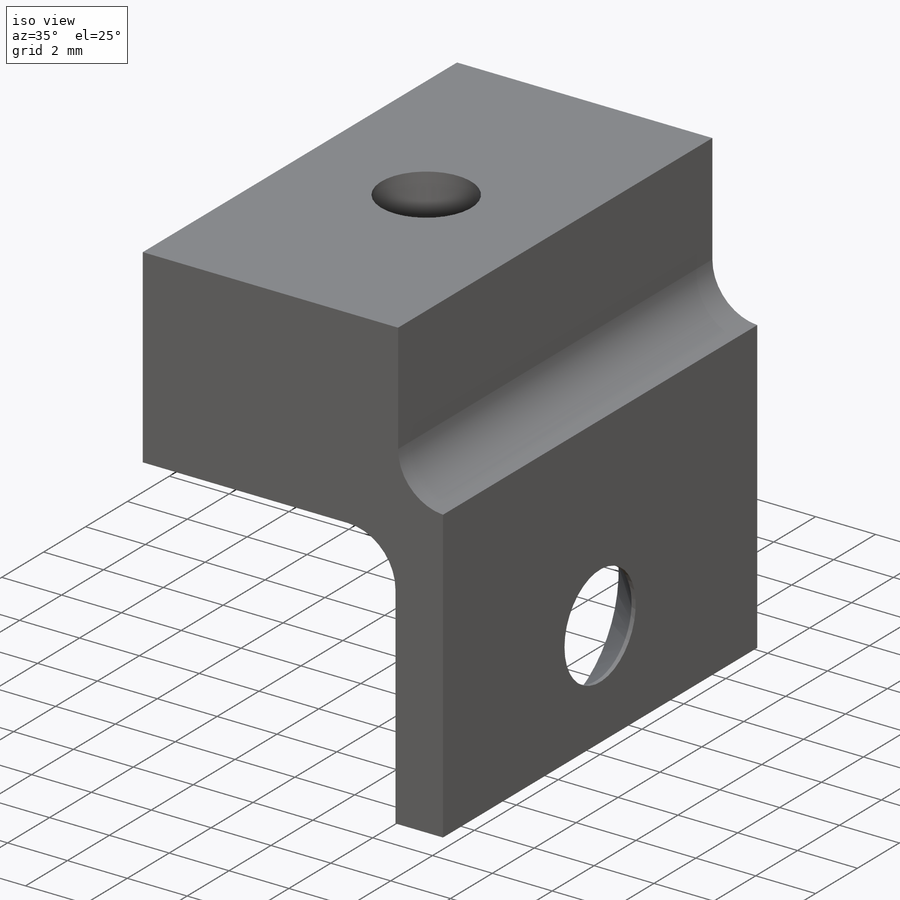
[diagram: iso view]
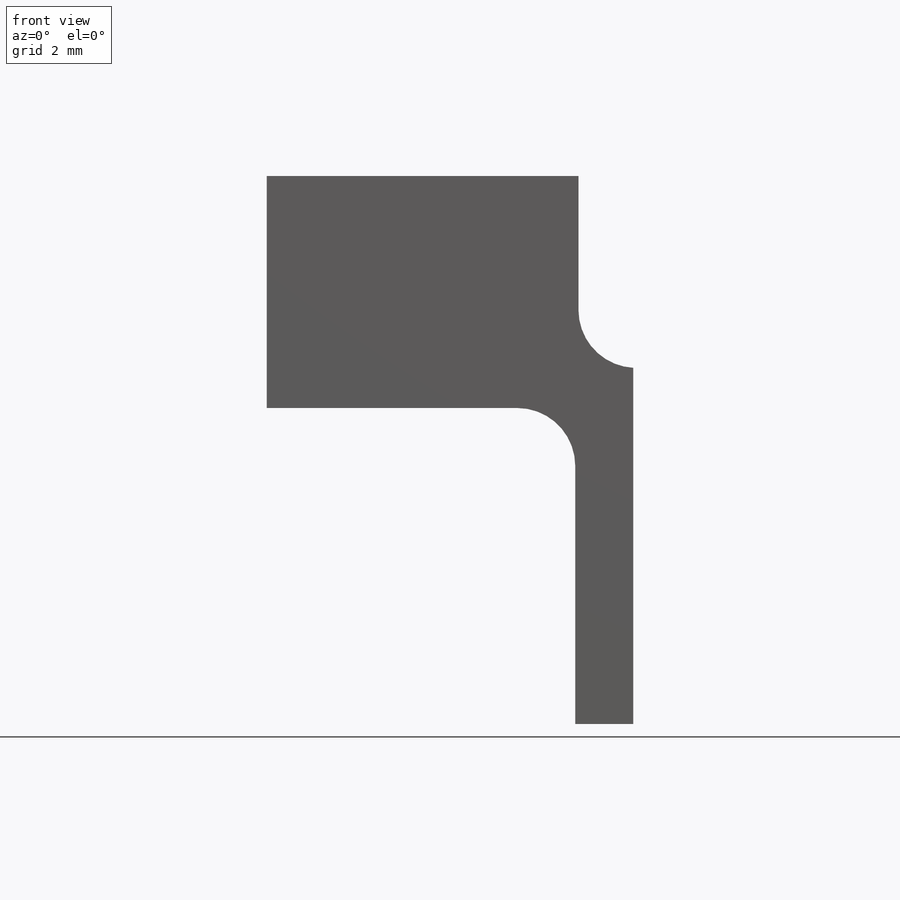
[diagram: front view]
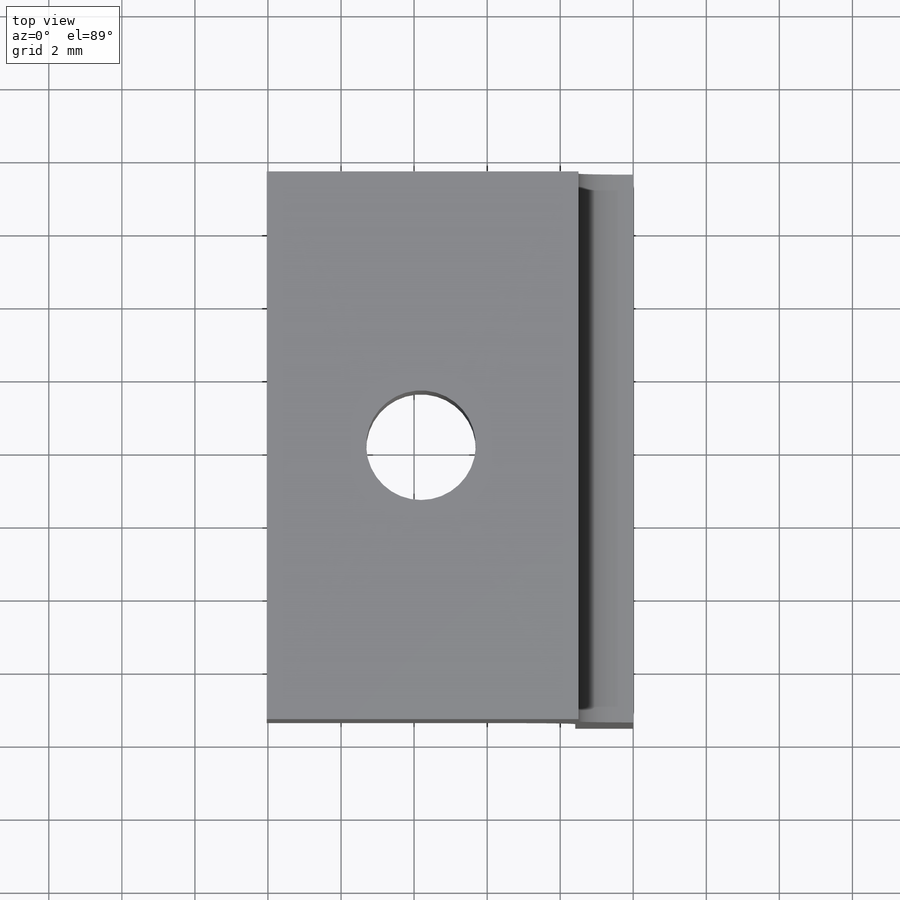
[diagram: top view]
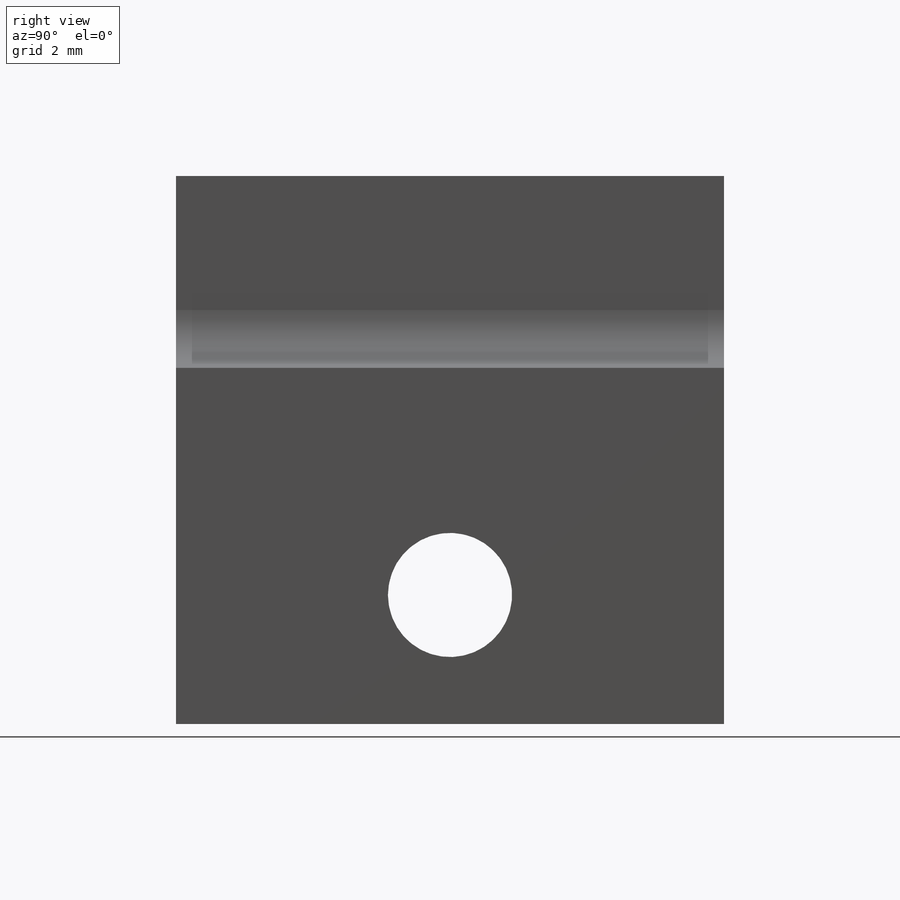
[diagram: right view]
SOLIDWORKS PART (.sldprt)
format: sldprt  version: not decoded by parser v0  size: 250,368 bytes
history: native  units: mm
features: sketch x5, plane x3, cut_extrude x2, material x1, extrude x1, fillet x1, hole x1 + 2 further entries (+13 scaffold rows collapsed)
feature tree (29):
  scaffold x13  (default folders/planes/origin — collapsed)
  material  "Material <not specified>"
  plane  "Plane1"
  plane  "Plane2"
  plane  "Plane3"
  "Axis2"
  "Axis3"
  sketch  "Sketch1"  dims[c1.D5=1.5875mm c1.D1=1.5875mm c1.D2=8.65mm c1.D3=15.0mm c1.D4=~10.033445mm c2.D1=0.0mm]
  extrude  "Extrude1"  Depth=15mm
  sketch  "Sketch2"  dims[D1=3.0mm]
  cut_extrude  "Extrude2"  [1 undecoded]
  sketch  "Sketch3"  dims[D1=5.25mm D2=1.5mm]
  cut_extrude  "Extrude3"  [1 undecoded]
  fillet  "Fillet1"  Radius=1.5875mm
  hole  "CSK for M3 Flat Head Machine Screw1"  Diameter=3.4mm Depth=1.5875mm
  sketch  "Sketch5"
  sketch  "Sketch4"  dims[hole-wizard template sketch: 55 standard entries collapsed; hole parameters kept: c17.Thru Hole Depth=1.5875mm c17.Near C'Sink Dia.=6.3mm c17.D4=~3.666174mm c17.Near C'Sink Angle=90.0deg]
decode coverage: 7 of 10 modeling features carry decoded parameters; 2 rows unclassified (native names shown)
note: ~ marks probable driven/reference dimensions
note: 2 parameter values undecoded
note: suppression state not decoded; provenance and decode notes live in map.json
